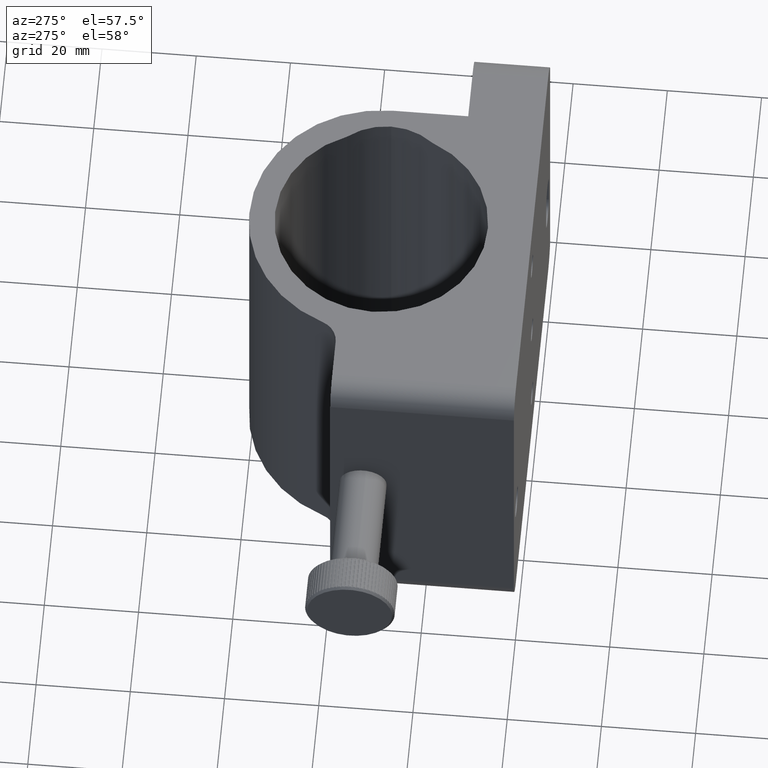
[diagram: clean part render]
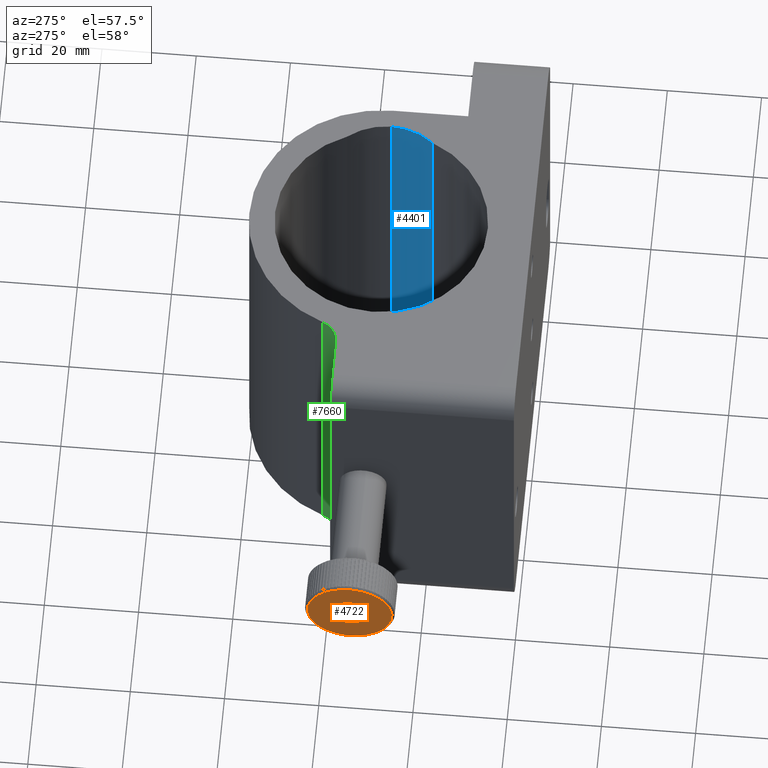
[diagram: same view with three faces highlighted in distinct colors, each labeled with its STEP entity id]
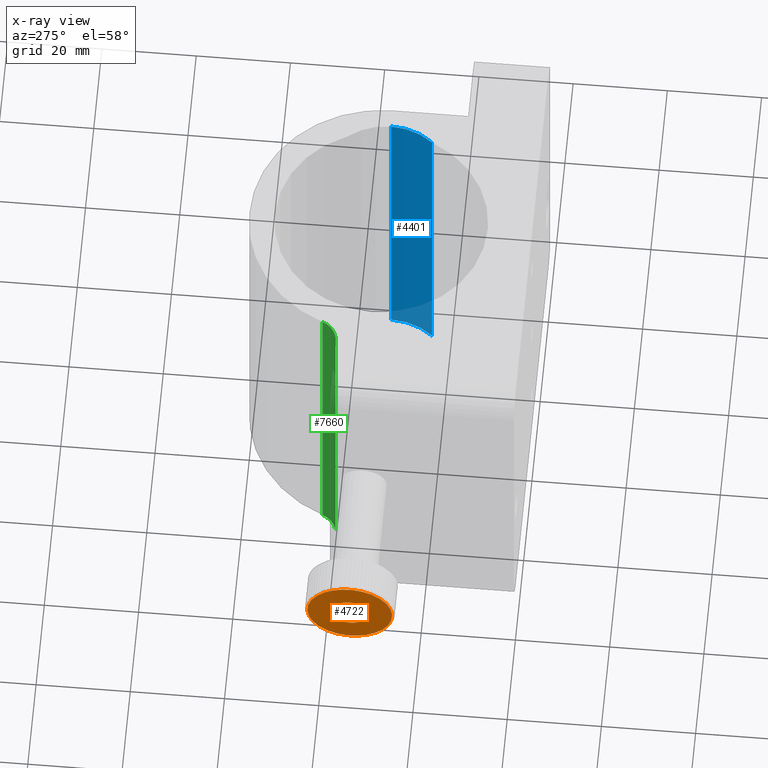
[diagram: x-ray of the same camera — body ghosted, the three highlighted faces saturated]
A machine part, auxiliary view with three faces highlighted in distinct colors.
The next image is the same camera in x-ray (body ghosted, the three faces saturated) — at least one of them is partly hidden behind the body in this view.
Their STEP definitions:

[orange] entity #4722 — the highlighted planar face has unit normal (1, -0, 0).
#25 = DIRECTION ( 'NONE',  ( 0.0000000000000000000, 0.3080093175159865400, -0.9513833403646168000 ) ) ;
#473 = FACE_BOUND ( 'NONE', #8779, .T. ) ;
#497 = ORIENTED_EDGE ( 'NONE', *, *, #7243, .T. ) ;
#528 = VERTEX_POINT ( 'NONE', #2695 ) ;
#692 = ORIENTED_EDGE ( 'NONE', *, *, #5005, .T. ) ;
#830 = CIRCLE ( 'NONE', #3564, 8.999999999999996400 ) ;
#991 = DIRECTION ( 'NONE',  ( -1.000000000000000000, 5.551115123125769800E-017, -3.081487911019578000E-033 ) ) ;
#1122 = CARTESIAN_POINT ( 'NONE',  ( -104.3690762351510000, 13.04013621154531900, 4.000000000000002700 ) ) ;
#1423 = DIRECTION ( 'NONE',  ( 1.000000000000000000, -5.551115123125769800E-017, 3.081487911019578000E-033 ) ) ;
#1801 = CARTESIAN_POINT ( 'NONE',  ( -104.3690762351510000, 13.04013621154531900, 4.000000000000002700 ) ) ;
#2695 = CARTESIAN_POINT ( 'NONE',  ( -104.3690762351510000, 10.26805235390144100, 12.56245006328154900 ) ) ;
#3123 = CARTESIAN_POINT ( 'NONE',  ( -104.3690762351510000, 13.04013621154531900, 4.000000000000002700 ) ) ;
#3228 = EDGE_LOOP ( 'NONE', ( #3845, #497 ) ) ;
#3262 = DIRECTION ( 'NONE',  ( 0.0000000000000000000, 0.3080093175159867000, -0.9513833403646166900 ) ) ;
#3321 = ORIENTED_EDGE ( 'NONE', *, *, #4273, .T. ) ;
#3495 = AXIS2_PLACEMENT_3D ( 'NONE', #1801, #6080, #6814 ) ;
#3564 = AXIS2_PLACEMENT_3D ( 'NONE', #3123, #991, #5201 ) ;
#3586 = CARTESIAN_POINT ( 'NONE',  ( -104.3690762351510000, 13.04013621154531900, 4.000000000000002700 ) ) ;
#3761 = AXIS2_PLACEMENT_3D ( 'NONE', #1122, #7508, #3262 ) ;
#3845 = ORIENTED_EDGE ( 'NONE', *, *, #5925, .T. ) ;
#4227 = FACE_OUTER_BOUND ( 'NONE', #3228, .T. ) ;
#4273 = EDGE_CURVE ( 'NONE', #4692, #5844, #5689, .T. ) ;
#4389 = CARTESIAN_POINT ( 'NONE',  ( -104.3690762351510000, 14.25677301573346500, 0.2420358055597662800 ) ) ;
#4692 = VERTEX_POINT ( 'NONE', #8921 ) ;
#4722 = ADVANCED_FACE ( 'NONE', ( #4227, #473 ), #6755, .F. ) ;
#4900 = AXIS2_PLACEMENT_3D ( 'NONE', #3586, #1423, #25 ) ;
#5005 = EDGE_CURVE ( 'NONE', #5844, #4692, #8672, .T. ) ;
#5095 = CARTESIAN_POINT ( 'NONE',  ( -104.3690762351510000, 13.04013621154531900, 4.000000000000002700 ) ) ;
#5142 = VERTEX_POINT ( 'NONE', #8793 ) ;
#5201 = DIRECTION ( 'NONE',  ( 0.0000000000000000000, 0.3080093175159867000, -0.9513833403646166900 ) ) ;
#5689 = CIRCLE ( 'NONE', #4900, 3.949999999999999700 ) ;
#5844 = VERTEX_POINT ( 'NONE', #4389 ) ;
#5925 = EDGE_CURVE ( 'NONE', #5142, #528, #830, .T. ) ;
#6080 = DIRECTION ( 'NONE',  ( 1.000000000000000000, -5.551115123125769100E-017, 3.081487911019578000E-033 ) ) ;
#6755 = PLANE ( 'NONE',  #3495 ) ;
#6814 = DIRECTION ( 'NONE',  ( 1.709795180526639600E-017, 0.3080093175159864800, -0.9513833403646166900 ) ) ;
#7243 = EDGE_CURVE ( 'NONE', #528, #5142, #7343, .T. ) ;
#7343 = CIRCLE ( 'NONE', #3761, 8.999999999999996400 ) ;
#7350 = AXIS2_PLACEMENT_3D ( 'NONE', #5095, #8640, #7949 ) ;
#7508 = DIRECTION ( 'NONE',  ( -1.000000000000000000, 5.551115123125769800E-017, -3.081487911019578000E-033 ) ) ;
#7949 = DIRECTION ( 'NONE',  ( 0.0000000000000000000, 0.3080093175159865400, -0.9513833403646168000 ) ) ;
#8640 = DIRECTION ( 'NONE',  ( 1.000000000000000000, -5.551115123125769800E-017, 3.081487911019578000E-033 ) ) ;
#8672 = CIRCLE ( 'NONE', #7350, 3.949999999999999700 ) ;
#8779 = EDGE_LOOP ( 'NONE', ( #3321, #692 ) ) ;
#8793 = CARTESIAN_POINT ( 'NONE',  ( -104.3690762351510000, 15.81222006918919500, -4.562450063281546300 ) ) ;
#8921 = CARTESIAN_POINT ( 'NONE',  ( -104.3690762351510000, 11.82349940735717200, 7.757964194440239300 ) ) ;

[blue] entity #4401 — the highlighted cylindrical surface (partial cylindrical patch) has radius 14 mm, axis along (-0, -0, 1).
#468 = CIRCLE ( 'NONE', #8629, 13.99999999999999800 ) ;
#806 = CYLINDRICAL_SURFACE ( 'NONE', #3951, 13.99999999999999800 ) ;
#1322 = DIRECTION ( 'NONE',  ( 1.000000000000000000, 0.0000000000000000000, 0.0000000000000000000 ) ) ;
#1666 = VERTEX_POINT ( 'NONE', #5889 ) ;
#1709 = DIRECTION ( 'NONE',  ( 1.000000000000000000, 0.0000000000000000000, 0.0000000000000000000 ) ) ;
#1895 = VERTEX_POINT ( 'NONE', #5932 ) ;
#2008 = CARTESIAN_POINT ( 'NONE',  ( -3.769076235151013000, 13.04013621154520000, 38.00000000000000000 ) ) ;
#2558 = EDGE_CURVE ( 'NONE', #1895, #3257, #7820, .T. ) ;
#2916 = FACE_OUTER_BOUND ( 'NONE', #4306, .T. ) ;
#3257 = VERTEX_POINT ( 'NONE', #2008 ) ;
#3367 = AXIS2_PLACEMENT_3D ( 'NONE', #7960, #7699, #1322 ) ;
#3414 = ORIENTED_EDGE ( 'NONE', *, *, #5837, .F. ) ;
#3431 = ORIENTED_EDGE ( 'NONE', *, *, #2558, .T. ) ;
#3472 = VECTOR ( 'NONE', #7464, 1000.000000000000000 ) ;
#3688 = CARTESIAN_POINT ( 'NONE',  ( -3.769076235151013000, 13.04013621154520000, -38.00000000000001400 ) ) ;
#3951 = AXIS2_PLACEMENT_3D ( 'NONE', #5847, #8120, #8688 ) ;
#4302 = ORIENTED_EDGE ( 'NONE', *, *, #8771, .T. ) ;
#4306 = EDGE_LOOP ( 'NONE', ( #3414, #7818, #4302, #3431 ) ) ;
#4360 = VECTOR ( 'NONE', #8651, 1000.000000000000000 ) ;
#4401 = ADVANCED_FACE ( 'NONE', ( #2916 ), #806, .F. ) ;
#4818 = LINE ( 'NONE', #3688, #4360 ) ;
#5238 = CARTESIAN_POINT ( 'NONE',  ( -17.76907623515101200, 13.04013621154520000, -38.00000000000001400 ) ) ;
#5349 = LINE ( 'NONE', #8986, #3472 ) ;
#5688 = VERTEX_POINT ( 'NONE', #9027 ) ;
#5837 = EDGE_CURVE ( 'NONE', #5688, #3257, #4818, .T. ) ;
#5847 = CARTESIAN_POINT ( 'NONE',  ( -17.76907623515101200, 13.04013621154520000, -38.00000000000001400 ) ) ;
#5889 = CARTESIAN_POINT ( 'NONE',  ( -7.031076235151017400, 4.057076821782710700, -38.00000000000000000 ) ) ;
#5932 = CARTESIAN_POINT ( 'NONE',  ( -7.031076235151017400, 4.057076821782710700, 38.00000000000000000 ) ) ;
#6646 = DIRECTION ( 'NONE',  ( 0.0000000000000000000, 0.0000000000000000000, 1.000000000000000000 ) ) ;
#7455 = EDGE_CURVE ( 'NONE', #1666, #5688, #468, .T. ) ;
#7464 = DIRECTION ( 'NONE',  ( -0.0000000000000000000, -0.0000000000000000000, 1.000000000000000000 ) ) ;
#7699 = DIRECTION ( 'NONE',  ( 0.0000000000000000000, 0.0000000000000000000, 1.000000000000000000 ) ) ;
#7818 = ORIENTED_EDGE ( 'NONE', *, *, #7455, .F. ) ;
#7820 = CIRCLE ( 'NONE', #3367, 13.99999999999999800 ) ;
#7960 = CARTESIAN_POINT ( 'NONE',  ( -17.76907623515101200, 13.04013621154520000, 38.00000000000000000 ) ) ;
#8120 = DIRECTION ( 'NONE',  ( -0.0000000000000000000, -0.0000000000000000000, 1.000000000000000000 ) ) ;
#8629 = AXIS2_PLACEMENT_3D ( 'NONE', #5238, #6646, #1709 ) ;
#8651 = DIRECTION ( 'NONE',  ( -0.0000000000000000000, -0.0000000000000000000, 1.000000000000000000 ) ) ;
#8688 = DIRECTION ( 'NONE',  ( 1.000000000000000000, 0.0000000000000000000, 0.0000000000000000000 ) ) ;
#8771 = EDGE_CURVE ( 'NONE', #1666, #1895, #5349, .T. ) ;
#8986 = CARTESIAN_POINT ( 'NONE',  ( -7.031076235151017400, 4.057076821782710700, -38.00000000000001400 ) ) ;
#9027 = CARTESIAN_POINT ( 'NONE',  ( -3.769076235151013000, 13.04013621154520000, -38.00000000000001400 ) ) ;

[green] entity #7660 — the highlighted cylindrical surface (edge-blend (fillet) strip) has radius 5 mm, axis along (-0, -0, -1).
#845 = EDGE_LOOP ( 'NONE', ( #8875, #2020, #3325, #9092 ) ) ;
#962 = DIRECTION ( 'NONE',  ( 1.000000000000000000, 0.0000000000000000000, 0.0000000000000000000 ) ) ;
#1170 = DIRECTION ( 'NONE',  ( 1.000000000000000000, 0.0000000000000000000, 0.0000000000000000000 ) ) ;
#1211 = DIRECTION ( 'NONE',  ( 0.0000000000000000000, 0.0000000000000000000, 1.000000000000000000 ) ) ;
#1378 = EDGE_CURVE ( 'NONE', #7614, #8425, #2024, .T. ) ;
#1585 = CARTESIAN_POINT ( 'NONE',  ( -58.50992853302972200, 20.04013621154536300, -38.00000000000000000 ) ) ;
#1809 = FACE_OUTER_BOUND ( 'NONE', #845, .T. ) ;
#1917 = AXIS2_PLACEMENT_3D ( 'NONE', #5445, #3238, #1170 ) ;
#2005 = EDGE_CURVE ( 'NONE', #2852, #7614, #5612, .T. ) ;
#2020 = ORIENTED_EDGE ( 'NONE', *, *, #1378, .F. ) ;
#2024 = LINE ( 'NONE', #7555, #6226 ) ;
#2852 = VERTEX_POINT ( 'NONE', #6203 ) ;
#3238 = DIRECTION ( 'NONE',  ( 0.0000000000000000000, 0.0000000000000000000, 1.000000000000000000 ) ) ;
#3316 = AXIS2_PLACEMENT_3D ( 'NONE', #4507, #5198, #962 ) ;
#3325 = ORIENTED_EDGE ( 'NONE', *, *, #2005, .F. ) ;
#4507 = CARTESIAN_POINT ( 'NONE',  ( -58.50992853302975000, 25.04013621154536300, 38.00000000000000000 ) ) ;
#4527 = VERTEX_POINT ( 'NONE', #7567 ) ;
#4548 = EDGE_CURVE ( 'NONE', #8425, #4527, #7565, .T. ) ;
#5043 = DIRECTION ( 'NONE',  ( -0.0000000000000000000, -0.0000000000000000000, -1.000000000000000000 ) ) ;
#5198 = DIRECTION ( 'NONE',  ( -0.0000000000000000000, -0.0000000000000000000, -1.000000000000000000 ) ) ;
#5445 = CARTESIAN_POINT ( 'NONE',  ( -58.50992853302975000, 25.04013621154536300, -38.00000000000000000 ) ) ;
#5460 = CARTESIAN_POINT ( 'NONE',  ( -58.50992853302975000, 25.04013621154536300, 38.00000000000000000 ) ) ;
#5470 = CARTESIAN_POINT ( 'NONE',  ( -53.85222363941175400, 23.22195439336351800, 38.00000000000000000 ) ) ;
#5612 = CIRCLE ( 'NONE', #1917, 4.999999999999997300 ) ;
#5817 = VECTOR ( 'NONE', #5043, 1000.000000000000000 ) ;
#6035 = LINE ( 'NONE', #1585, #5817 ) ;
#6126 = CYLINDRICAL_SURFACE ( 'NONE', #7034, 5.000000000000004400 ) ;
#6142 = DIRECTION ( 'NONE',  ( -0.0000000000000000000, -0.0000000000000000000, -1.000000000000000000 ) ) ;
#6203 = CARTESIAN_POINT ( 'NONE',  ( -58.50992853302972200, 20.04013621154536300, -38.00000000000000000 ) ) ;
#6226 = VECTOR ( 'NONE', #1211, 1000.000000000000000 ) ;
#6264 = EDGE_CURVE ( 'NONE', #4527, #2852, #6035, .T. ) ;
#6740 = CARTESIAN_POINT ( 'NONE',  ( -53.85222363941175400, 23.22195439336351800, -38.00000000000000000 ) ) ;
#7034 = AXIS2_PLACEMENT_3D ( 'NONE', #5460, #6142, #8303 ) ;
#7555 = CARTESIAN_POINT ( 'NONE',  ( -53.85222363941175400, 23.22195439336351800, 38.00000000000000000 ) ) ;
#7565 = CIRCLE ( 'NONE', #3316, 4.999999999999997300 ) ;
#7567 = CARTESIAN_POINT ( 'NONE',  ( -58.50992853302972200, 20.04013621154536300, 38.00000000000000000 ) ) ;
#7614 = VERTEX_POINT ( 'NONE', #6740 ) ;
#7660 = ADVANCED_FACE ( 'NONE', ( #1809 ), #6126, .F. ) ;
#8303 = DIRECTION ( 'NONE',  ( -1.000000000000000000, 0.0000000000000000000, 0.0000000000000000000 ) ) ;
#8425 = VERTEX_POINT ( 'NONE', #5470 ) ;
#8875 = ORIENTED_EDGE ( 'NONE', *, *, #4548, .F. ) ;
#9092 = ORIENTED_EDGE ( 'NONE', *, *, #6264, .F. ) ;